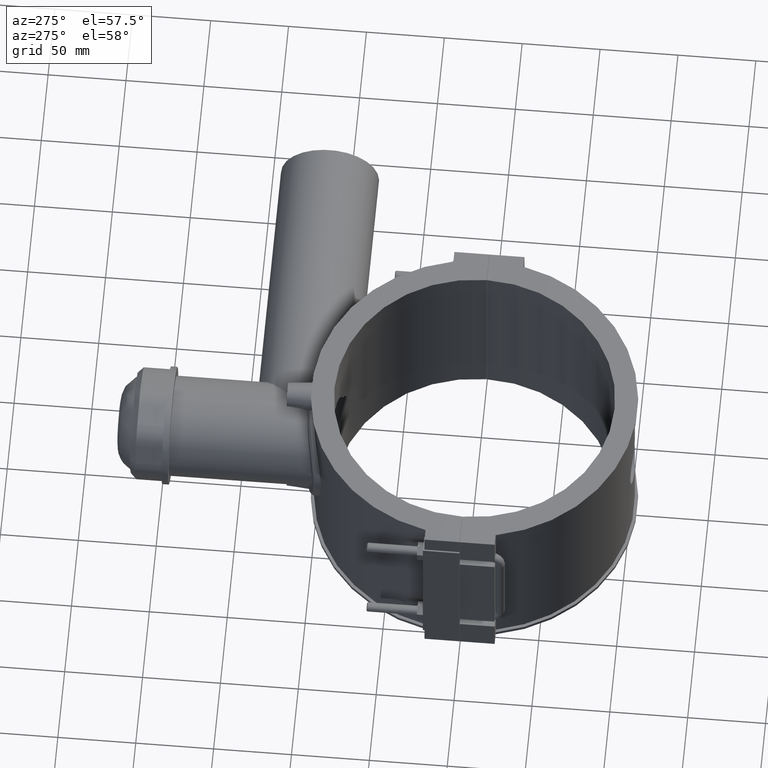
[diagram: clean part render]
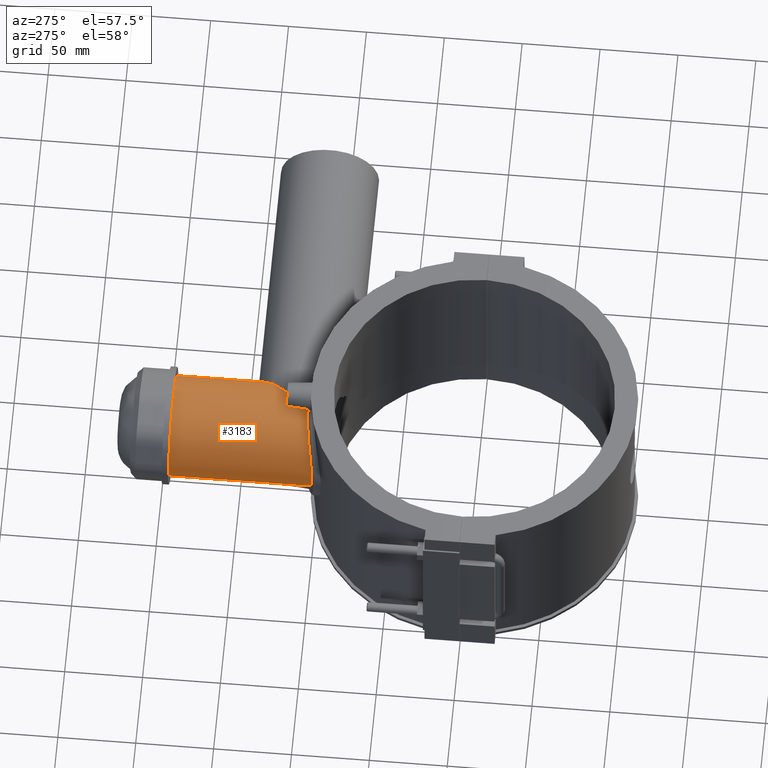
[diagram: same view with one face highlighted and labeled with its STEP entity id]
A machine part, auxiliary view. The second image highlights one B-rep face of the part: STEP entity #3183.
In plain terms, the highlighted cylindrical surface (bore or boss wall) has radius 32.13 mm, axis along (0, 1, 0).
Its self-contained STEP definition (entity closure, byte-faithful):
#754=FACE_BOUND('',#1266,.T.);
#833=CIRCLE('',#3400,32.13);
#1038=FACE_OUTER_BOUND('',#1265,.T.);
#1265=EDGE_LOOP('',(#2942,#2943));
#1266=EDGE_LOOP('',(#2944));
#1323=B_SPLINE_CURVE_WITH_KNOTS('',3,(#6053,#6054,#6055,#6056,#6057,#6058,
#6059,#6060,#6061,#6062,#6063,#6064,#6065,#6066,#6067,#6068,#6069,#6070,
#6071,#6072,#6073,#6074,#6075,#6076,#6077,#6078,#6079,#6080,#6081,#6082,
#6083,#6084,#6085,#6086,#6087,#6088,#6089,#6090,#6091,#6092,#6093,#6094),
 .UNSPECIFIED.,.F.,.F.,(4,2,2,2,2,2,2,2,2,2,2,2,2,2,2,2,2,2,2,2,4),(4.16239062857135,
4.26484114166734,4.87399881387039,5.48315648607344,6.09231415827649,6.70147183047954,
7.31062950268259,7.91997153394714,8.52931356521168,9.13865559647623,9.74799762774078,
10.3573396590053,10.9666816902699,11.5760237215344,12.185365752799,12.794523425002,
13.4036810972051,14.0128387694081,14.6219964416112,15.2311541138142,15.3336046269102),
 .UNSPECIFIED.);
#1328=B_SPLINE_CURVE_WITH_KNOTS('',3,(#6418,#6419,#6420,#6421,#6422,#6423,
#6424,#6425,#6426,#6427,#6428,#6429,#6430,#6431,#6432,#6433,#6434,#6435,
#6436,#6437,#6438,#6439,#6440,#6441,#6442,#6443,#6444,#6445,#6446,#6447,
#6448,#6449,#6450,#6451,#6452,#6453,#6454,#6455,#6456,#6457,#6458,#6459,
#6460,#6461,#6462,#6463,#6464,#6465,#6466,#6467,#6468,#6469,#6470,#6471,
#6472,#6473,#6474,#6475,#6476),.UNSPECIFIED.,.F.,.F.,(4,2,2,2,2,2,2,2,2,
2,2,2,2,2,2,2,2,2,2,2,2,2,2,2,2,3,2,2,4),(-11.9181604525569,-11.9002914439571,
-11.7029011430488,-11.5055108421406,-11.3081205412323,-11.1107302403241,
-10.7159496385076,-10.3211690366911,-9.9263884348746,-9.1368272312416,-8.34726602760861,
-7.69863837597403,-7.05001072433945,-6.40138307270487,-5.75275542107029,
-5.10412776943572,-4.45550011780114,-3.80687246616656,-3.15824481453199,
-2.36868361089899,-1.579122407266,-1.1843418054495,-0.789561203632996,-0.394780601816496,
-0.19739030090825,0.,0.197390300908249,0.394780601816498,0.41264961041632),
 .UNSPECIFIED.);
#1565=VERTEX_POINT('',#6045);
#1566=VERTEX_POINT('',#6052);
#1570=VERTEX_POINT('',#6218);
#1968=EDGE_CURVE('',#1565,#1566,#1323,.T.);
#1975=EDGE_CURVE('',#1570,#1570,#833,.T.);
#2059=EDGE_CURVE('',#1565,#1566,#1328,.T.);
#2942=ORIENTED_EDGE('',*,*,#1968,.F.);
#2943=ORIENTED_EDGE('',*,*,#2059,.T.);
#2944=ORIENTED_EDGE('',*,*,#1975,.F.);
#3004=CYLINDRICAL_SURFACE('',#3462,32.13);
#3183=ADVANCED_FACE('',(#1038,#754),#3004,.T.);
#3400=AXIS2_PLACEMENT_3D('',#6219,#4114,#4115);
#3462=AXIS2_PLACEMENT_3D('',#6417,#4294,#4295);
#4114=DIRECTION('center_axis',(0.,1.,3.06161699786838E-16));
#4115=DIRECTION('ref_axis',(1.,0.,0.));
#4294=DIRECTION('center_axis',(0.,1.,3.06161699786838E-16));
#4295=DIRECTION('ref_axis',(0.,0.,1.));
#6045=CARTESIAN_POINT('',(7.25529942099568,106.457053530121,31.3001202922878));
#6052=CARTESIAN_POINT('',(7.25529942099562,106.457053530121,-31.3001202922878));
#6053=CARTESIAN_POINT('Ctrl Pts',(7.25529942099471,106.457053530105,31.3001202922882));
#6054=CARTESIAN_POINT('Ctrl Pts',(6.90655184413443,106.480821500461,31.3809592177888));
#6055=CARTESIAN_POINT('Ctrl Pts',(6.55702959635781,106.502919431541,31.4558335277683));
#6056=CARTESIAN_POINT('Ctrl Pts',(4.12644271358457,106.644549358802,31.9344065966872));
#6057=CARTESIAN_POINT('Ctrl Pts',(2.03052557401016,106.704,32.13));
#6058=CARTESIAN_POINT('Ctrl Pts',(-2.03052557401016,106.704,32.13));
#6059=CARTESIAN_POINT('Ctrl Pts',(-4.12644271358457,106.644549358802,31.9344065966872));
#6060=CARTESIAN_POINT('Ctrl Pts',(-8.28775136119439,106.40207053805,31.1150611685028));
#6061=CARTESIAN_POINT('Ctrl Pts',(-10.3531945002374,106.219195675952,30.491526017514));
#6062=CARTESIAN_POINT('Ctrl Pts',(-14.3077545528157,105.759133536736,28.8480492405103));
#6063=CARTESIAN_POINT('Ctrl Pts',(-16.2002520016382,105.481943593856,27.8268023591914));
#6064=CARTESIAN_POINT('Ctrl Pts',(-19.6965302289228,104.885343524393,25.472059031008));
#6065=CARTESIAN_POINT('Ctrl Pts',(-21.3002904186913,104.566488771383,24.1383913403562));
#6066=CARTESIAN_POINT('Ctrl Pts',(-24.1388208101358,103.947927120966,21.2998609489118));
#6067=CARTESIAN_POINT('Ctrl Pts',(-25.4725389597474,103.626114285964,19.6958986701467));
#6068=CARTESIAN_POINT('Ctrl Pts',(-27.8270934681588,103.018807372058,16.1997387117149));
#6069=CARTESIAN_POINT('Ctrl Pts',(-28.8481203879002,102.733933801169,14.3075616125592));
#6070=CARTESIAN_POINT('Ctrl Pts',(-30.4913515940686,102.258264901373,10.3536359435491));
#6071=CARTESIAN_POINT('Ctrl Pts',(-31.1148601165932,102.06759044032,8.28849709499243));
#6072=CARTESIAN_POINT('Ctrl Pts',(-31.9342962439061,101.814184974329,4.12727844378532));
#6073=CARTESIAN_POINT('Ctrl Pts',(-32.13,101.751691465056,2.03114010421516));
#6074=CARTESIAN_POINT('Ctrl Pts',(-32.13,101.751691465056,-2.03114010421516));
#6075=CARTESIAN_POINT('Ctrl Pts',(-31.9342962439061,101.814184974329,-4.12727844378532));
#6076=CARTESIAN_POINT('Ctrl Pts',(-31.1148601165932,102.06759044032,-8.28849709499244));
#6077=CARTESIAN_POINT('Ctrl Pts',(-30.4913515940686,102.258264901373,-10.3536359435491));
#6078=CARTESIAN_POINT('Ctrl Pts',(-28.8481203879002,102.733933801169,-14.3075616125592));
#6079=CARTESIAN_POINT('Ctrl Pts',(-27.8270934681588,103.018807372058,-16.1997387117149));
#6080=CARTESIAN_POINT('Ctrl Pts',(-25.4725389597474,103.626114285964,-19.6958986701467));
#6081=CARTESIAN_POINT('Ctrl Pts',(-24.1388208101358,103.947927120966,-21.2998609489118));
#6082=CARTESIAN_POINT('Ctrl Pts',(-21.3002904186913,104.566488771383,-24.1383913403562));
#6083=CARTESIAN_POINT('Ctrl Pts',(-19.6965302289228,104.885343524393,-25.472059031008));
#6084=CARTESIAN_POINT('Ctrl Pts',(-16.2002520016382,105.481943593856,-27.8268023591914));
#6085=CARTESIAN_POINT('Ctrl Pts',(-14.3077545528157,105.759133536736,-28.8480492405103));
#6086=CARTESIAN_POINT('Ctrl Pts',(-10.3531945002374,106.219195675952,-30.491526017514));
#6087=CARTESIAN_POINT('Ctrl Pts',(-8.28775136119438,106.40207053805,-31.1150611685028));
#6088=CARTESIAN_POINT('Ctrl Pts',(-4.12644271358456,106.644549358802,-31.9344065966872));
#6089=CARTESIAN_POINT('Ctrl Pts',(-2.03052557401017,106.704,-32.13));
#6090=CARTESIAN_POINT('Ctrl Pts',(2.03052557401016,106.704,-32.13));
#6091=CARTESIAN_POINT('Ctrl Pts',(4.12644271358455,106.644549358802,-31.9344065966872));
#6092=CARTESIAN_POINT('Ctrl Pts',(6.55702959635778,106.502919431541,-31.4558335277683));
#6093=CARTESIAN_POINT('Ctrl Pts',(6.90655184413439,106.480821500461,-31.3809592177888));
#6094=CARTESIAN_POINT('Ctrl Pts',(7.25529942099466,106.457053530105,-31.3001202922882));
#6218=CARTESIAN_POINT('',(0.,193.5,32.1300000000001));
#6219=CARTESIAN_POINT('Origin',(0.,193.5,3.16877359279378E-14));
#6417=CARTESIAN_POINT('Origin',(0.,146.925,1.74282547603658E-14));
#6418=CARTESIAN_POINT('Ctrl Pts',(7.25529942099674,106.457053530137,31.3001202922878));
#6419=CARTESIAN_POINT('Ctrl Pts',(7.23304709005303,106.502622190342,31.305278333928));
#6420=CARTESIAN_POINT('Ctrl Pts',(7.21104874387352,106.548338403515,31.3103524004084));
#6421=CARTESIAN_POINT('Ctrl Pts',(6.94926551960491,107.100960282028,31.3704532053205));
#6422=CARTESIAN_POINT('Ctrl Pts',(6.74068514415729,107.625122716322,31.4153614832315));
#6423=CARTESIAN_POINT('Ctrl Pts',(6.43195315385152,108.745717638506,31.4800214973169));
#6424=CARTESIAN_POINT('Ctrl Pts',(6.33142164130612,109.342032330306,31.5));
#6425=CARTESIAN_POINT('Ctrl Pts',(6.33142164130612,110.657967669694,31.5));
#6426=CARTESIAN_POINT('Ctrl Pts',(6.43195315385155,111.254282361494,31.4800214973169));
#6427=CARTESIAN_POINT('Ctrl Pts',(6.7406851441573,112.374877283678,31.4153614832315));
#6428=CARTESIAN_POINT('Ctrl Pts',(6.9492655196049,112.899039717972,31.3704532053205));
#6429=CARTESIAN_POINT('Ctrl Pts',(7.66942209999906,114.419283359989,31.2051179732201));
#6430=CARTESIAN_POINT('Ctrl Pts',(8.26955845641537,115.361049714834,31.0552023578969));
#6431=CARTESIAN_POINT('Ctrl Pts',(9.59265175084443,117.237003844678,30.672336443773));
#6432=CARTESIAN_POINT('Ctrl Pts',(10.3140844705322,118.159123929053,30.4401894471407));
#6433=CARTESIAN_POINT('Ctrl Pts',(11.8261436834065,120.00243169563,29.8852438069317));
#6434=CARTESIAN_POINT('Ctrl Pts',(12.6176875337939,120.922849377114,29.562387697439));
#6435=CARTESIAN_POINT('Ctrl Pts',(15.0611774828396,123.69343527362,28.437887610256));
#6436=CARTESIAN_POINT('Ctrl Pts',(16.7594410131446,125.529280210364,27.4868804708869));
#6437=CARTESIAN_POINT('Ctrl Pts',(20.0662445564371,129.050822705471,25.1744571719257));
#6438=CARTESIAN_POINT('Ctrl Pts',(21.676081446327,130.735058028135,23.8126691866178));
#6439=CARTESIAN_POINT('Ctrl Pts',(24.3722137680747,133.537998476963,21.0097287377892));
#6440=CARTESIAN_POINT('Ctrl Pts',(25.5704738018521,134.775669569372,19.55342489119));
#6441=CARTESIAN_POINT('Ctrl Pts',(27.7594472665668,137.029087752362,16.2971974023799));
#6442=CARTESIAN_POINT('Ctrl Pts',(28.7499061236817,138.044650772541,14.4969752564588));
#6443=CARTESIAN_POINT('Ctrl Pts',(30.3879695610922,139.721608761098,10.64381350389));
#6444=CARTESIAN_POINT('Ctrl Pts',(31.0371456907016,140.384626302421,8.58593600099146));
#6445=CARTESIAN_POINT('Ctrl Pts',(31.9083432435265,141.274006322452,4.34515145640989));
#6446=CARTESIAN_POINT('Ctrl Pts',(32.13,141.5,2.16209217211526));
#6447=CARTESIAN_POINT('Ctrl Pts',(32.13,141.5,-2.16209217211525));
#6448=CARTESIAN_POINT('Ctrl Pts',(31.9083432435265,141.274006322452,-4.34515145640988));
#6449=CARTESIAN_POINT('Ctrl Pts',(31.0371456907016,140.384626302421,-8.58593600099144));
#6450=CARTESIAN_POINT('Ctrl Pts',(30.3879695610922,139.721608761098,-10.64381350389));
#6451=CARTESIAN_POINT('Ctrl Pts',(28.7499061236817,138.044650772541,-14.4969752564588));
#6452=CARTESIAN_POINT('Ctrl Pts',(27.7594472665668,137.029087752362,-16.2971974023799));
#6453=CARTESIAN_POINT('Ctrl Pts',(25.5704738018521,134.775669569372,-19.55342489119));
#6454=CARTESIAN_POINT('Ctrl Pts',(24.3722137680748,133.537998476963,-21.0097287377892));
#6455=CARTESIAN_POINT('Ctrl Pts',(21.6760814463271,130.735058028135,-23.8126691866178));
#6456=CARTESIAN_POINT('Ctrl Pts',(20.0662445564371,129.050822705471,-25.1744571719256));
#6457=CARTESIAN_POINT('Ctrl Pts',(16.7594410131446,125.529280210364,-27.4868804708868));
#6458=CARTESIAN_POINT('Ctrl Pts',(15.0611774828397,123.69343527362,-28.437887610256));
#6459=CARTESIAN_POINT('Ctrl Pts',(12.6176875337939,120.922849377114,-29.5623876974389));
#6460=CARTESIAN_POINT('Ctrl Pts',(11.8261436834065,120.00243169563,-29.8852438069316));
#6461=CARTESIAN_POINT('Ctrl Pts',(10.3140844705323,118.159123929053,-30.4401894471407));
#6462=CARTESIAN_POINT('Ctrl Pts',(9.59265175084443,117.237003844678,-30.672336443773));
#6463=CARTESIAN_POINT('Ctrl Pts',(8.26955845641535,115.361049714834,-31.0552023578969));
#6464=CARTESIAN_POINT('Ctrl Pts',(7.66942209999899,114.419283359989,-31.2051179732201));
#6465=CARTESIAN_POINT('Ctrl Pts',(6.94926551960481,112.899039717972,-31.3704532053205));
#6466=CARTESIAN_POINT('Ctrl Pts',(6.74068514415724,112.374877283678,-31.4153614832315));
#6467=CARTESIAN_POINT('Ctrl Pts',(6.43195315385148,111.254282361494,-31.4800214973169));
#6468=CARTESIAN_POINT('Ctrl Pts',(6.33142164130604,110.657967669694,-31.5));
#6469=CARTESIAN_POINT('Ctrl Pts',(6.33142164130604,110.,-31.5));
#6470=CARTESIAN_POINT('Ctrl Pts',(6.33142164130603,109.342032330306,-31.5));
#6471=CARTESIAN_POINT('Ctrl Pts',(6.43195315385151,108.745717638506,-31.4800214973169));
#6472=CARTESIAN_POINT('Ctrl Pts',(6.74068514415726,107.625122716322,-31.4153614832315));
#6473=CARTESIAN_POINT('Ctrl Pts',(6.94926551960484,107.100960282028,-31.3704532053205));
#6474=CARTESIAN_POINT('Ctrl Pts',(7.21104874387346,106.548338403515,-31.3103524004084));
#6475=CARTESIAN_POINT('Ctrl Pts',(7.23304709005298,106.502622190342,-31.305278333928));
#6476=CARTESIAN_POINT('Ctrl Pts',(7.25529942099669,106.457053530137,-31.3001202922878));